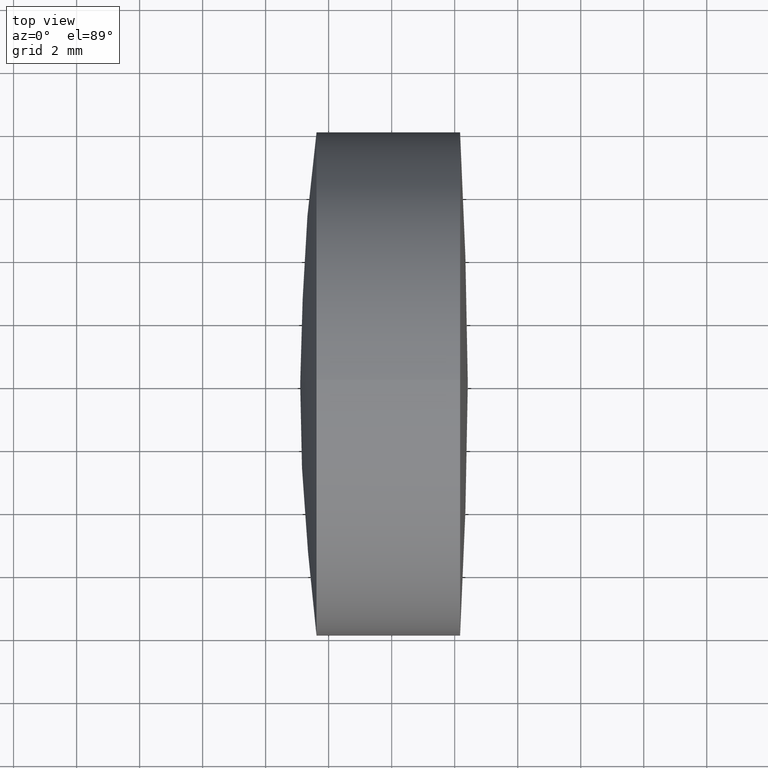
[diagram: clean part render]
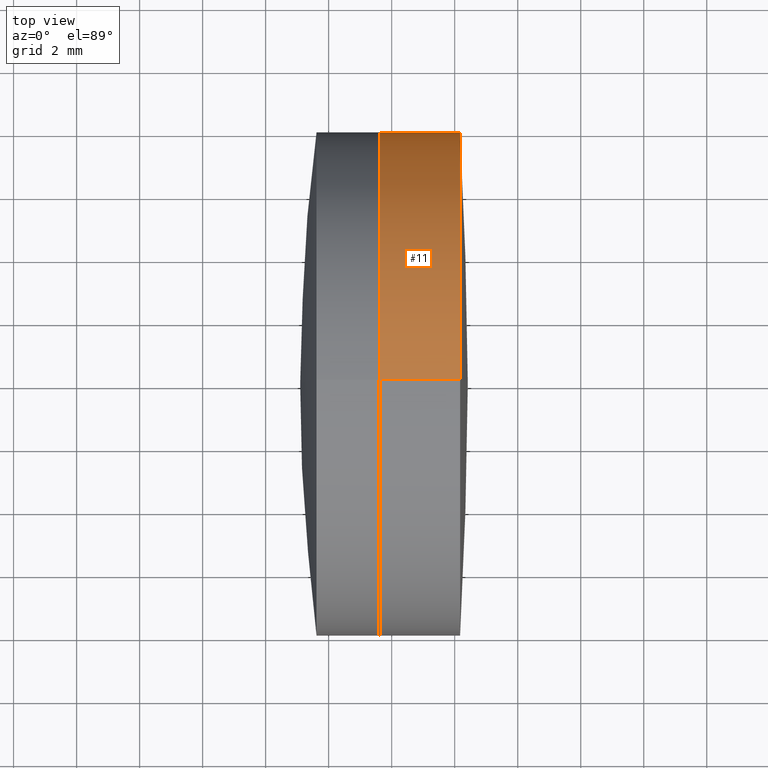
[diagram: same view with one face highlighted and labeled with its STEP entity id]
A machine part, top view. The second image highlights one B-rep face of the part: STEP entity #11.
In plain terms, the highlighted cylindrical surface (partial cylindrical patch) has radius 8 mm, axis along (-1, -0, -0).
Its self-contained STEP definition (entity closure, byte-faithful):
#8 = ORIENTED_EDGE ( 'NONE', *, *, #275, .T. ) ;
#9 = CARTESIAN_POINT ( 'NONE',  ( 38.17090631032368700, 9.797174393178837500E-016, -8.000000000000007100 ) ) ;
#11 = ADVANCED_FACE ( 'NONE', ( #230 ), #252, .T. ) ;
#17 = DIRECTION ( 'NONE',  ( -1.000000000000000000, -0.0000000000000000000, -0.0000000000000000000 ) ) ;
#32 = DIRECTION ( 'NONE',  ( -1.000000000000000000, -0.0000000000000000000, -0.0000000000000000000 ) ) ;
#38 = DIRECTION ( 'NONE',  ( 0.0000000000000000000, 0.0000000000000000000, 1.000000000000000000 ) ) ;
#41 = VERTEX_POINT ( 'NONE', #341 ) ;
#49 = VECTOR ( 'NONE', #137, 1000.000000000000000 ) ;
#55 = DIRECTION ( 'NONE',  ( 0.0000000000000000000, 0.0000000000000000000, 1.000000000000000000 ) ) ;
#57 = AXIS2_PLACEMENT_3D ( 'NONE', #79, #17, #331 ) ;
#60 = EDGE_CURVE ( 'NONE', #86, #41, #113, .T. ) ;
#64 = VECTOR ( 'NONE', #324, 1000.000000000000000 ) ;
#66 = ORIENTED_EDGE ( 'NONE', *, *, #104, .T. ) ;
#79 = CARTESIAN_POINT ( 'NONE',  ( -0.5519199926577972300, 0.0000000000000000000, 0.0000000000000000000 ) ) ;
#80 = CARTESIAN_POINT ( 'NONE',  ( -0.5519199926577972300, 0.0000000000000000000, 8.000000000000010700 ) ) ;
#86 = VERTEX_POINT ( 'NONE', #174 ) ;
#104 = EDGE_CURVE ( 'NONE', #247, #271, #130, .T. ) ;
#113 = CIRCLE ( 'NONE', #115, 8.000000000000012400 ) ;
#115 = AXIS2_PLACEMENT_3D ( 'NONE', #127, #32, #55 ) ;
#125 = LINE ( 'NONE', #176, #49 ) ;
#127 = CARTESIAN_POINT ( 'NONE',  ( 35.61649277584162100, 0.0000000000000000000, 0.0000000000000000000 ) ) ;
#130 = CIRCLE ( 'NONE', #160, 8.000000000000007100 ) ;
#137 = DIRECTION ( 'NONE',  ( -1.000000000000000000, -0.0000000000000000000, -0.0000000000000000000 ) ) ;
#151 = EDGE_LOOP ( 'NONE', ( #66, #8, #215, #201 ) ) ;
#157 = CARTESIAN_POINT ( 'NONE',  ( 38.17090631032368700, 0.0000000000000000000, 8.000000000000007100 ) ) ;
#160 = AXIS2_PLACEMENT_3D ( 'NONE', #260, #242, #38 ) ;
#174 = CARTESIAN_POINT ( 'NONE',  ( 35.61649277584162100, 0.0000000000000000000, 8.000000000000014200 ) ) ;
#176 = CARTESIAN_POINT ( 'NONE',  ( -0.5519199926577972300, 9.797174393178839500E-016, -8.000000000000010700 ) ) ;
#196 = EDGE_CURVE ( 'NONE', #247, #86, #212, .T. ) ;
#201 = ORIENTED_EDGE ( 'NONE', *, *, #196, .F. ) ;
#212 = LINE ( 'NONE', #80, #64 ) ;
#215 = ORIENTED_EDGE ( 'NONE', *, *, #60, .F. ) ;
#230 = FACE_OUTER_BOUND ( 'NONE', #151, .T. ) ;
#242 = DIRECTION ( 'NONE',  ( -1.000000000000000000, -0.0000000000000000000, -0.0000000000000000000 ) ) ;
#247 = VERTEX_POINT ( 'NONE', #157 ) ;
#252 = CYLINDRICAL_SURFACE ( 'NONE', #57, 8.000000000000010700 ) ;
#260 = CARTESIAN_POINT ( 'NONE',  ( 38.17090631032368700, 0.0000000000000000000, 0.0000000000000000000 ) ) ;
#271 = VERTEX_POINT ( 'NONE', #9 ) ;
#275 = EDGE_CURVE ( 'NONE', #271, #41, #125, .T. ) ;
#324 = DIRECTION ( 'NONE',  ( -1.000000000000000000, -0.0000000000000000000, -0.0000000000000000000 ) ) ;
#331 = DIRECTION ( 'NONE',  ( 0.0000000000000000000, 0.0000000000000000000, 1.000000000000000000 ) ) ;
#341 = CARTESIAN_POINT ( 'NONE',  ( 35.61649277584162100, 9.797174393178843400E-016, -8.000000000000014200 ) ) ;